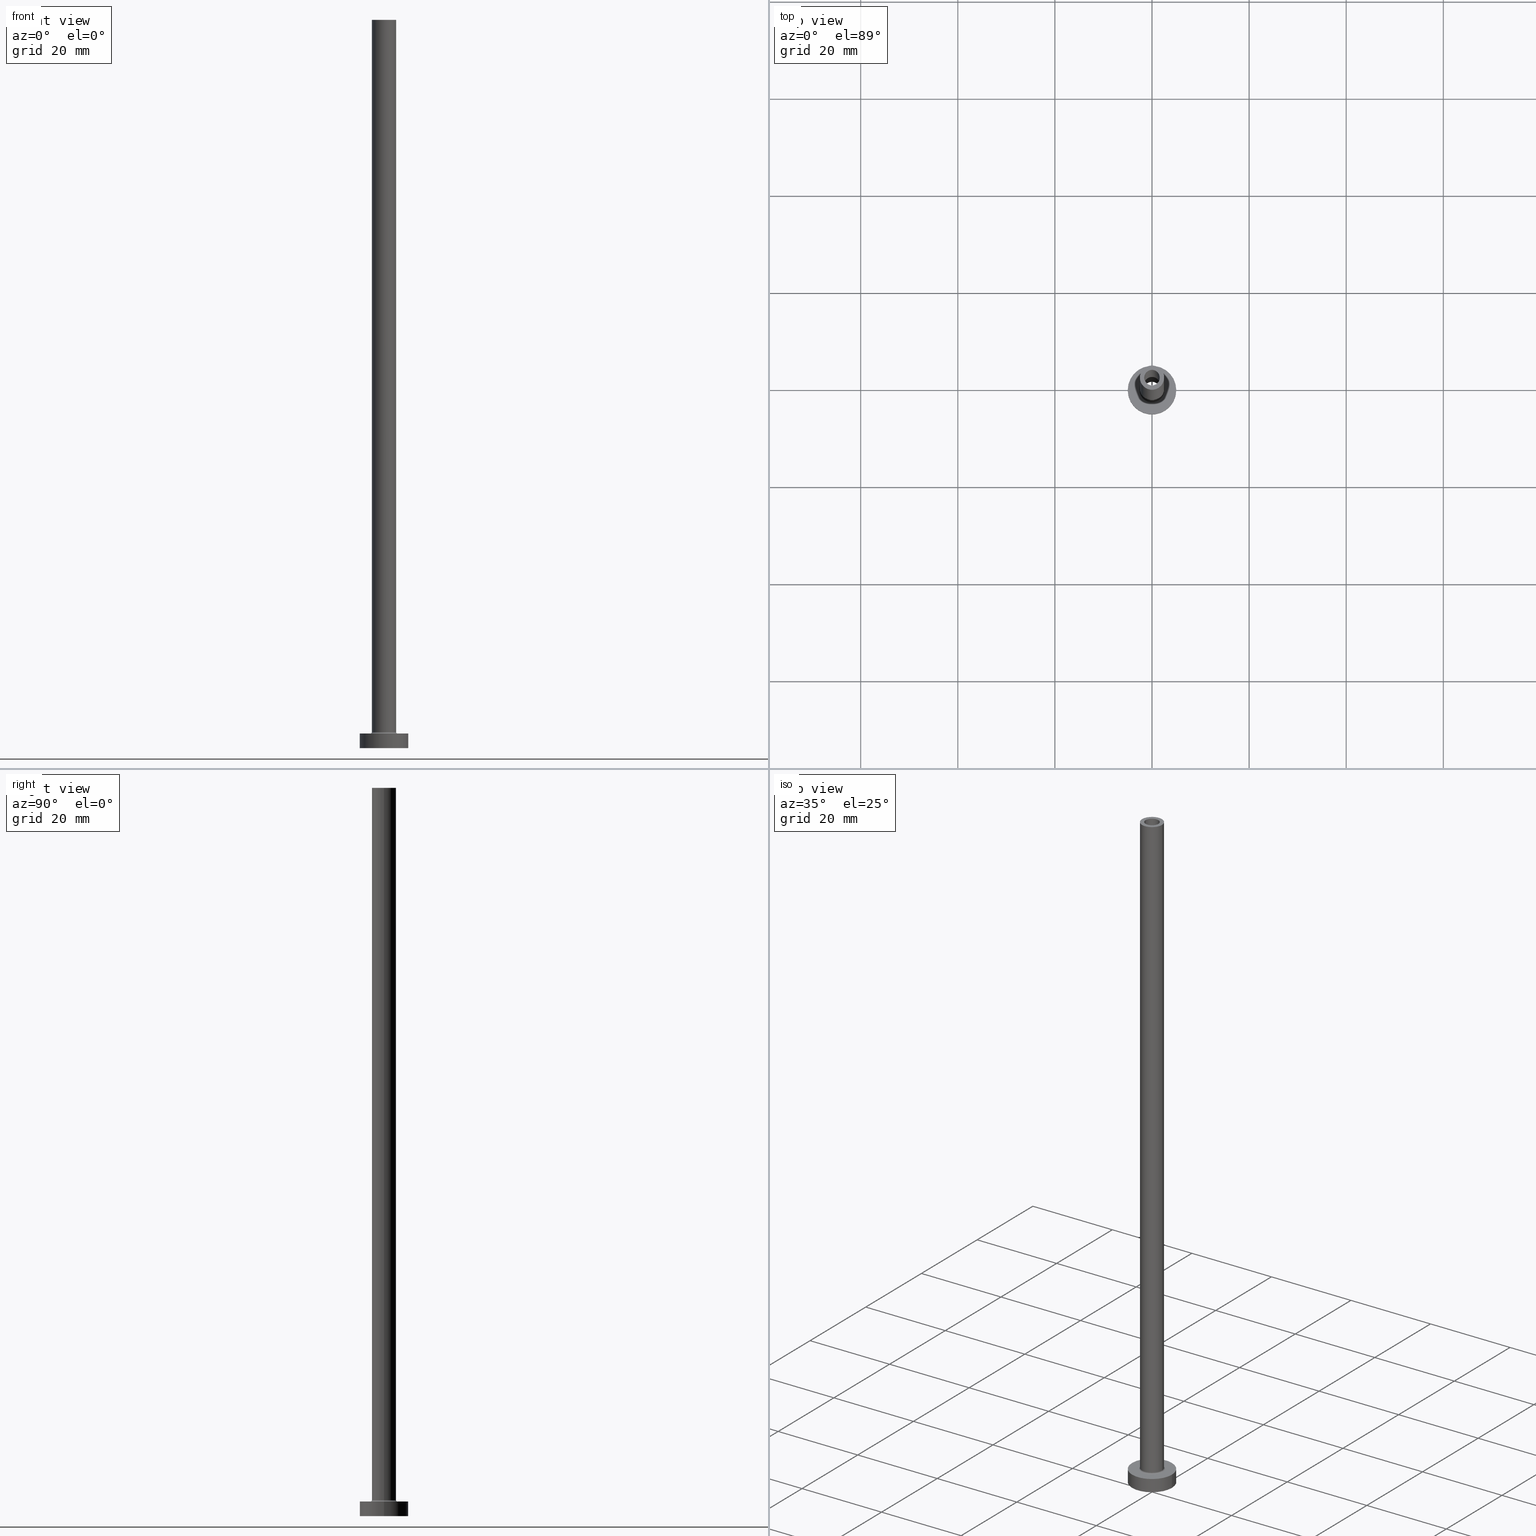
[diagram: canonical four-view strip — front | top / right | iso, engineering-drawing reading convention]
A machine part, canonical four-view strip (front | top / right | iso — engineering-drawing reading convention). The complete STEP part file that produces these views, byte-faithful:
ISO-10303-21;
HEADER;
FILE_DESCRIPTION (( 'STEP AP203' ),
    '1' );
FILE_NAME ('ae11.STEP',
    '2023-02-13T17:57:30',
    ( '' ),
    ( '' ),
    'SwSTEP 2.0',
    'SolidWorks 2019',
    '' );
FILE_SCHEMA (( 'CONFIG_CONTROL_DESIGN' ));
ENDSEC;

DATA;
#1 = EDGE_LOOP ( 'NONE', ( #250, #146, #103, #329 ) ) ;
#2 = DIRECTION ( 'NONE',  ( 0.000000000000000000, 0.000000000000000000, 1.000000000000000000 ) ) ;
#3 = VECTOR ( 'NONE', #459, 1000.000000000000000 ) ;
#4 = DIRECTION ( 'NONE',  ( 0.000000000000000000, 0.000000000000000000, 1.000000000000000000 ) ) ;
#5 = DIRECTION ( 'NONE',  ( 0.000000000000000000, 0.000000000000000000, 1.000000000000000000 ) ) ;
#6 = DIRECTION ( 'NONE',  ( 1.000000000000000000, 0.000000000000000000, -0.000000000000000000 ) ) ;
#7 = VERTEX_POINT ( 'NONE', #402 ) ;
#8 = ADVANCED_FACE ( 'NONE', ( #225 ), #370, .F. ) ;
#9 = CARTESIAN_POINT ( 'NONE',  ( 0.000000000000000000, 0.000000000000000000, 150.0000000000000000 ) ) ;
#10 = DIRECTION ( 'NONE',  ( 1.000000000000000000, 0.000000000000000000, 0.000000000000000000 ) ) ;
#11 = AXIS2_PLACEMENT_3D ( 'NONE', #151, #441, #405 ) ;
#12 = DIRECTION ( 'NONE',  ( 1.000000000000000000, 0.000000000000000000, 0.000000000000000000 ) ) ;
#13 = FACE_BOUND ( 'NONE', #406, .T. ) ;
#14 = DIRECTION ( 'NONE',  ( -1.000000000000000000, 0.000000000000000000, 0.000000000000000000 ) ) ;
#15 = ORIENTED_EDGE ( 'NONE', *, *, #382, .T. ) ;
#16 = PERSON_AND_ORGANIZATION_ROLE ( 'design_owner' ) ;
#17 = ORIENTED_EDGE ( 'NONE', *, *, #296, .F. ) ;
#18 = COORDINATED_UNIVERSAL_TIME_OFFSET ( 1, 0, .AHEAD. ) ;
#19 = VECTOR ( 'NONE', #176, 1000.000000000000000 ) ;
#20 = AXIS2_PLACEMENT_3D ( 'NONE', #246, #252, #436 ) ;
#21 = PERSON_AND_ORGANIZATION ( #450, #293 ) ;
#22 = CARTESIAN_POINT ( 'NONE',  ( 5.000000000000000000, 6.123233995736766282E-16, 3.000000000000000000 ) ) ;
#23 = DIRECTION ( 'NONE',  ( -0.000000000000000000, -0.000000000000000000, -1.000000000000000000 ) ) ;
#24 = CALENDAR_DATE ( 2023, 13, 2 ) ;
#25 = ADVANCED_FACE ( 'NONE', ( #191 ), #251, .F. ) ;
#26 = AXIS2_PLACEMENT_3D ( 'NONE', #179, #109, #393 ) ;
#27 = DIRECTION ( 'NONE',  ( 0.000000000000000000, 0.000000000000000000, -1.000000000000000000 ) ) ;
#28 = PERSON_AND_ORGANIZATION ( #450, #293 ) ;
#29 = DIRECTION ( 'NONE',  ( 0.000000000000000000, 0.000000000000000000, 1.000000000000000000 ) ) ;
#30 = DIRECTION ( 'NONE',  ( -1.000000000000000000, 0.000000000000000000, 0.000000000000000000 ) ) ;
#31 = PRODUCT_DEFINITION_FORMATION_WITH_SPECIFIED_SOURCE ( 'LIBOVOLN�', '', #299, .NOT_KNOWN. ) ;
#32 = AXIS2_PLACEMENT_3D ( 'NONE', #236, #65, #207 ) ;
#33 = CARTESIAN_POINT ( 'NONE',  ( 0.000000000000000000, 0.000000000000000000, 109.9497474683058442 ) ) ;
#34 = DATE_TIME_ROLE ( 'classification_date' ) ;
#35 = VERTEX_POINT ( 'NONE', #155 ) ;
#36 = DIRECTION ( 'NONE',  ( 1.000000000000000000, 0.000000000000000000, 0.000000000000000000 ) ) ;
#37 = VERTEX_POINT ( 'NONE', #337 ) ;
#38 = ORIENTED_EDGE ( 'NONE', *, *, #193, .T. ) ;
#39 = CARTESIAN_POINT ( 'NONE',  ( 0.000000000000000000, 0.000000000000000000, 105.0000000000000000 ) ) ;
#40 = CIRCLE ( 'NONE', #353, 5.000000000000000000 ) ;
#41 = VERTEX_POINT ( 'NONE', #22 ) ;
#42 = DIRECTION ( 'NONE',  ( 1.224646799147353207E-16, 1.000000000000000000, -0.000000000000000000 ) ) ;
#43 = CIRCLE ( 'NONE', #355, 2.799999999999999822 ) ;
#44 = CC_DESIGN_APPROVAL ( #56, ( #31 ) ) ;
#45 = EDGE_LOOP ( 'NONE', ( #289, #216 ) ) ;
#46 = EDGE_CURVE ( 'NONE', #351, #138, #123, .T. ) ;
#47 = LINE ( 'NONE', #364, #19 ) ;
#48 = DIRECTION ( 'NONE',  ( 0.000000000000000000, 0.000000000000000000, 1.000000000000000000 ) ) ;
#49 = CIRCLE ( 'NONE', #414, 0.2999999999999999334 ) ;
#50 = DIRECTION ( 'NONE',  ( 1.000000000000000000, 0.000000000000000000, 0.000000000000000000 ) ) ;
#51 = DIRECTION ( 'NONE',  ( 1.000000000000000000, 0.000000000000000000, 0.000000000000000000 ) ) ;
#52 = ORIENTED_EDGE ( 'NONE', *, *, #342, .T. ) ;
#53 = DATE_AND_TIME ( #408, #152 ) ;
#54 = DIRECTION ( 'NONE',  ( -1.000000000000000000, 0.000000000000000000, 0.000000000000000000 ) ) ;
#55 = COORDINATED_UNIVERSAL_TIME_OFFSET ( 1, 0, .AHEAD. ) ;
#56 = APPROVAL ( #197, 'NEUR�EN�' ) ;
#57 = UNCERTAINTY_MEASURE_WITH_UNIT (LENGTH_MEASURE( 1.000000000000000082E-05 ), #255, 'distance_accuracy_value', 'NONE');
#58 = DIRECTION ( 'NONE',  ( -0.000000000000000000, -0.000000000000000000, -1.000000000000000000 ) ) ;
#59 = CYLINDRICAL_SURFACE ( 'NONE', #454, 5.000000000000000000 ) ;
#60 = EDGE_CURVE ( 'NONE', #35, #149, #166, .T. ) ;
#61 = ORIENTED_EDGE ( 'NONE', *, *, #404, .F. ) ;
#62 = VECTOR ( 'NONE', #291, 1000.000000000000000 ) ;
#63 = DIRECTION ( 'NONE',  ( -0.000000000000000000, -0.000000000000000000, -1.000000000000000000 ) ) ;
#64 = SHAPE_DEFINITION_REPRESENTATION ( #115, #384 ) ;
#65 = DIRECTION ( 'NONE',  ( 0.000000000000000000, 0.000000000000000000, 1.000000000000000000 ) ) ;
#66 = EDGE_CURVE ( 'NONE', #395, #224, #88, .T. ) ;
#67 = CYLINDRICAL_SURFACE ( 'NONE', #70, 2.500000000000000000 ) ;
#68 = EDGE_LOOP ( 'NONE', ( #182, #80 ) ) ;
#69 = EDGE_CURVE ( 'NONE', #351, #157, #213, .T. ) ;
#70 = AXIS2_PLACEMENT_3D ( 'NONE', #202, #343, #30 ) ;
#71 = CARTESIAN_POINT ( 'NONE',  ( -1.750000000000000000, 0.000000000000000000, 0.000000000000000000 ) ) ;
#72 = DIRECTION ( 'NONE',  ( 1.000000000000000000, 0.000000000000000000, 0.000000000000000000 ) ) ;
#73 = ORIENTED_EDGE ( 'NONE', *, *, #105, .F. ) ;
#74 = CARTESIAN_POINT ( 'NONE',  ( 0.000000000000000000, 0.000000000000000000, 3.000000000000000000 ) ) ;
#75 = EDGE_CURVE ( 'NONE', #443, #275, #101, .T. ) ;
#76 = EDGE_LOOP ( 'NONE', ( #361, #175, #15, #444 ) ) ;
#77 = DIRECTION ( 'NONE',  ( 0.000000000000000000, 0.000000000000000000, 1.000000000000000000 ) ) ;
#78 = AXIS2_PLACEMENT_3D ( 'NONE', #84, #77, #50 ) ;
#79 = LOCAL_TIME ( 18, 57, 30.00000000000000000, #238 ) ;
#80 = ORIENTED_EDGE ( 'NONE', *, *, #274, .T. ) ;
#81 = CARTESIAN_POINT ( 'NONE',  ( 0.000000000000000000, 0.000000000000000000, 0.000000000000000000 ) ) ;
#82 = EDGE_LOOP ( 'NONE', ( #392, #243, #284, #279 ) ) ;
#83 = DIRECTION ( 'NONE',  ( -1.000000000000000000, 1.224646799147353207E-16, 0.000000000000000000 ) ) ;
#84 = CARTESIAN_POINT ( 'NONE',  ( 0.000000000000000000, 0.000000000000000000, 3.299999999999997158 ) ) ;
#85 = PRODUCT_DEFINITION ( 'NEZN�M�', '', #31, #229 ) ;
#86 = CARTESIAN_POINT ( 'NONE',  ( -5.000000000000000000, 0.000000000000000000, 3.000000000000000000 ) ) ;
#87 = LINE ( 'NONE', #220, #119 ) ;
#88 = LINE ( 'NONE', #339, #62 ) ;
#89 = AXIS2_PLACEMENT_3D ( 'NONE', #276, #425, #387 ) ;
#90 = VERTEX_POINT ( 'NONE', #134 ) ;
#91 = ORIENTED_EDGE ( 'NONE', *, *, #286, .T. ) ;
#92 = PRODUCT_RELATED_PRODUCT_CATEGORY ( 'detail', '', ( #299 ) ) ;
#93 = DIRECTION ( 'NONE',  ( 0.000000000000000000, 0.000000000000000000, -1.000000000000000000 ) ) ;
#94 = APPROVAL_PERSON_ORGANIZATION ( #97, #56, #263 ) ;
#95 = APPROVAL_ROLE ( '' ) ;
#96 = CARTESIAN_POINT ( 'NONE',  ( 0.000000000000000000, 0.000000000000000000, 3.000000000000000000 ) ) ;
#97 = PERSON_AND_ORGANIZATION ( #450, #293 ) ;
#98 = FACE_OUTER_BOUND ( 'NONE', #173, .T. ) ;
#99 = DATE_AND_TIME ( #381, #79 ) ;
#100 = DIRECTION ( 'NONE',  ( -0.000000000000000000, -0.000000000000000000, -1.000000000000000000 ) ) ;
#101 = CIRCLE ( 'NONE', #11, 2.500000000000000000 ) ;
#102 = FACE_OUTER_BOUND ( 'NONE', #321, .T. ) ;
#103 = ORIENTED_EDGE ( 'NONE', *, *, #375, .F. ) ;
#104 = FACE_BOUND ( 'NONE', #180, .T. ) ;
#105 = EDGE_CURVE ( 'NONE', #273, #41, #385, .T. ) ;
#106 = TOROIDAL_SURFACE ( 'NONE', #32, 2.799999999999999822, 0.2999999999999999889 ) ;
#107 = FACE_BOUND ( 'NONE', #256, .T. ) ;
#108 = ADVANCED_FACE ( 'NONE', ( #102 ), #59, .T. ) ;
#109 = DIRECTION ( 'NONE',  ( 0.000000000000000000, 0.000000000000000000, 1.000000000000000000 ) ) ;
#110 = DIRECTION ( 'NONE',  ( 0.000000000000000000, 0.000000000000000000, -1.000000000000000000 ) ) ;
#111 = ORIENTED_EDGE ( 'NONE', *, *, #303, .F. ) ;
#112 = CLOSED_SHELL ( 'NONE', ( #25, #440, #168, #158, #162, #108, #434, #257, #172, #233, #245, #222, #367, #8 ) ) ;
#113 = CARTESIAN_POINT ( 'NONE',  ( 0.000000000000000000, 0.000000000000000000, 3.000000000000000000 ) ) ;
#114 = DIRECTION ( 'NONE',  ( 0.000000000000000000, 0.000000000000000000, 1.000000000000000000 ) ) ;
#115 = PRODUCT_DEFINITION_SHAPE ( 'NONE', 'NONE',  #85 ) ;
#116 = ORIENTED_EDGE ( 'NONE', *, *, #360, .T. ) ;
#117 = DIRECTION ( 'NONE',  ( 0.000000000000000000, 0.000000000000000000, 1.000000000000000000 ) ) ;
#118 = CIRCLE ( 'NONE', #199, 1.600000000000000089 ) ;
#119 = VECTOR ( 'NONE', #242, 1000.000000000000000 ) ;
#120 = CC_DESIGN_PERSON_AND_ORGANIZATION_ASSIGNMENT ( #344, #460, ( #31 ) ) ;
#121 = ORIENTED_EDGE ( 'NONE', *, *, #416, .T. ) ;
#122 = APPLICATION_PROTOCOL_DEFINITION ( 'international standard', 'config_control_design', 1994, #418 ) ;
#123 = LINE ( 'NONE', #300, #206 ) ;
#124 = DIRECTION ( 'NONE',  ( 0.000000000000000000, 0.000000000000000000, -1.000000000000000000 ) ) ;
#125 = APPROVAL_STATUS ( 'not_yet_approved' ) ;
#126 = CARTESIAN_POINT ( 'NONE',  ( 0.000000000000000000, 0.000000000000000000, 0.000000000000000000 ) ) ;
#127 = DIRECTION ( 'NONE',  ( 1.000000000000000000, 0.000000000000000000, 0.000000000000000000 ) ) ;
#128 = PERSON_AND_ORGANIZATION_ROLE ( 'creator' ) ;
#129 = FACE_OUTER_BOUND ( 'NONE', #1, .T. ) ;
#130 = AXIS2_PLACEMENT_3D ( 'NONE', #96, #58, #51 ) ;
#131 = LOCAL_TIME ( 18, 57, 30.00000000000000000, #261 ) ;
#132 = CARTESIAN_POINT ( 'NONE',  ( 0.000000000000000000, 0.000000000000000000, 3.000000000000000000 ) ) ;
#133 = EDGE_CURVE ( 'NONE', #138, #212, #228, .T. ) ;
#134 = CARTESIAN_POINT ( 'NONE',  ( 5.000000000000000000, 6.123233995736766282E-16, 0.000000000000000000 ) ) ;
#135 = ORIENTED_EDGE ( 'NONE', *, *, #274, .F. ) ;
#136 = ORIENTED_EDGE ( 'NONE', *, *, #305, .T. ) ;
#137 = EDGE_CURVE ( 'NONE', #157, #212, #455, .T. ) ;
#138 = VERTEX_POINT ( 'NONE', #71 ) ;
#139 = TOROIDAL_SURFACE ( 'NONE', #234, 2.799999999999999822, 0.2999999999999999889 ) ;
#140 = DIRECTION ( 'NONE',  ( 1.000000000000000000, 0.000000000000000000, 0.000000000000000000 ) ) ;
#141 = ORIENTED_EDGE ( 'NONE', *, *, #303, .T. ) ;
#142 = FACE_OUTER_BOUND ( 'NONE', #68, .T. ) ;
#143 = EDGE_LOOP ( 'NONE', ( #153, #17 ) ) ;
#144 = CARTESIAN_POINT ( 'NONE',  ( 0.000000000000000000, 0.000000000000000000, 109.9497474683058442 ) ) ;
#145 = LINE ( 'NONE', #318, #232 ) ;
#146 = ORIENTED_EDGE ( 'NONE', *, *, #264, .T. ) ;
#147 = CIRCLE ( 'NONE', #186, 5.000000000000000000 ) ;
#148 = DIRECTION ( 'NONE',  ( -0.000000000000000000, -0.000000000000000000, -1.000000000000000000 ) ) ;
#149 = VERTEX_POINT ( 'NONE', #160 ) ;
#150 = DIRECTION ( 'NONE',  ( 0.000000000000000000, 0.000000000000000000, 1.000000000000000000 ) ) ;
#151 = CARTESIAN_POINT ( 'NONE',  ( 0.000000000000000000, 0.000000000000000000, 150.0000000000000000 ) ) ;
#152 = LOCAL_TIME ( 18, 57, 30.00000000000000000, #55 ) ;
#153 = ORIENTED_EDGE ( 'NONE', *, *, #453, .F. ) ;
#154 = CIRCLE ( 'NONE', #26, 5.000000000000000000 ) ;
#155 = CARTESIAN_POINT ( 'NONE',  ( -2.799999999999999822, 3.429011037612589276E-16, 2.999999999999998668 ) ) ;
#156 = CALENDAR_DATE ( 2023, 13, 2 ) ;
#157 = VERTEX_POINT ( 'NONE', #415 ) ;
#158 = ADVANCED_FACE ( 'NONE', ( #268 ), #411, .T. ) ;
#159 = AXIS2_PLACEMENT_3D ( 'NONE', #9, #315, #215 ) ;
#160 = CARTESIAN_POINT ( 'NONE',  ( 2.799999999999999822, 0.000000000000000000, 2.999999999999998668 ) ) ;
#161 = PERSON_AND_ORGANIZATION_ROLE ( 'classification_officer' ) ;
#162 = ADVANCED_FACE ( 'NONE', ( #345 ), #308, .T. ) ;
#163 = DIRECTION ( 'NONE',  ( -1.000000000000000000, 0.000000000000000000, 0.000000000000000000 ) ) ;
#164 = CC_DESIGN_DATE_AND_TIME_ASSIGNMENT ( #99, #34, ( #332 ) ) ;
#165 = APPROVAL_STATUS ( 'not_yet_approved' ) ;
#166 = CIRCLE ( 'NONE', #130, 2.799999999999999822 ) ;
#167 = DIRECTION ( 'NONE',  ( 0.000000000000000000, 0.000000000000000000, -1.000000000000000000 ) ) ;
#168 = ADVANCED_FACE ( 'NONE', ( #129 ), #106, .F. ) ;
#169 = DATE_AND_TIME ( #417, #334 ) ;
#170 = DIRECTION ( 'NONE',  ( 1.000000000000000000, 0.000000000000000000, -0.000000000000000000 ) ) ;
#171 = APPROVAL_DATE_TIME ( #169, #183 ) ;
#172 = ADVANCED_FACE ( 'NONE', ( #301 ), #67, .T. ) ;
#173 = EDGE_LOOP ( 'NONE', ( #420, #324, #292, #407 ) ) ;
#174 = CARTESIAN_POINT ( 'NONE',  ( 0.000000000000000000, 0.000000000000000000, 3.299999999999997158 ) ) ;
#175 = ORIENTED_EDGE ( 'NONE', *, *, #404, .T. ) ;
#176 = DIRECTION ( 'NONE',  ( 0.000000000000000000, 0.000000000000000000, -1.000000000000000000 ) ) ;
#177 = AXIS2_PLACEMENT_3D ( 'NONE', #340, #198, #304 ) ;
#178 = ORIENTED_EDGE ( 'NONE', *, *, #372, .F. ) ;
#179 = CARTESIAN_POINT ( 'NONE',  ( 0.000000000000000000, 0.000000000000000000, 0.000000000000000000 ) ) ;
#180 = EDGE_LOOP ( 'NONE', ( #376, #61 ) ) ;
#181 = DIRECTION ( 'NONE',  ( 1.000000000000000000, 0.000000000000000000, 0.000000000000000000 ) ) ;
#182 = ORIENTED_EDGE ( 'NONE', *, *, #105, .T. ) ;
#183 = APPROVAL ( #165, 'NEUR�EN�' ) ;
#184 = CARTESIAN_POINT ( 'NONE',  ( 0.000000000000000000, 0.000000000000000000, 105.0000000000000000 ) ) ;
#185 = DIRECTION ( 'NONE',  ( 1.000000000000000000, 0.000000000000000000, 0.000000000000000000 ) ) ;
#186 = AXIS2_PLACEMENT_3D ( 'NONE', #74, #48, #10 ) ;
#187 = CARTESIAN_POINT ( 'NONE',  ( 0.000000000000000000, 0.000000000000000000, 150.0000000000000000 ) ) ;
#188 = CC_DESIGN_DATE_AND_TIME_ASSIGNMENT ( #190, #331, ( #85 ) ) ;
#189 = EDGE_LOOP ( 'NONE', ( #141, #430 ) ) ;
#190 = DATE_AND_TIME ( #24, #131 ) ;
#191 = FACE_OUTER_BOUND ( 'NONE', #82, .T. ) ;
#192 = AXIS2_PLACEMENT_3D ( 'NONE', #379, #29, #200 ) ;
#193 = EDGE_CURVE ( 'NONE', #212, #138, #240, .T. ) ;
#194 = DIRECTION ( 'NONE',  ( 0.000000000000000000, 0.000000000000000000, -1.000000000000000000 ) ) ;
#195 = EDGE_CURVE ( 'NONE', #41, #90, #231, .T. ) ;
#196 = CARTESIAN_POINT ( 'NONE',  ( 0.000000000000000000, 0.000000000000000000, 150.0000000000000000 ) ) ;
#197 = APPROVAL_STATUS ( 'not_yet_approved' ) ;
#198 = DIRECTION ( 'NONE',  ( -0.000000000000000000, -0.000000000000000000, -1.000000000000000000 ) ) ;
#199 = AXIS2_PLACEMENT_3D ( 'NONE', #241, #363, #185 ) ;
#200 = DIRECTION ( 'NONE',  ( 1.000000000000000000, 0.000000000000000000, 0.000000000000000000 ) ) ;
#201 = CC_DESIGN_PERSON_AND_ORGANIZATION_ASSIGNMENT ( #28, #128, ( #31 ) ) ;
#202 = CARTESIAN_POINT ( 'NONE',  ( 0.000000000000000000, 0.000000000000000000, 150.0000000000000000 ) ) ;
#203 = CARTESIAN_POINT ( 'NONE',  ( 1.750000000000000000, 2.143131898507868297E-16, 0.000000000000000000 ) ) ;
#204 = APPROVAL_PERSON_ORGANIZATION ( #266, #183, #412 ) ;
#205 = EDGE_LOOP ( 'NONE', ( #260, #458 ) ) ;
#206 = VECTOR ( 'NONE', #124, 1000.000000000000000 ) ;
#207 = DIRECTION ( 'NONE',  ( 1.000000000000000000, 0.000000000000000000, 0.000000000000000000 ) ) ;
#208 = APPROVAL_DATE_TIME ( #346, #56 ) ;
#209 = CARTESIAN_POINT ( 'NONE',  ( -2.500000000000000000, 0.000000000000000000, 3.299999999999997158 ) ) ;
#210 = CARTESIAN_POINT ( 'NONE',  ( 2.500000000000000000, 3.061616997868383141E-16, 3.299999999999997158 ) ) ;
#211 = CARTESIAN_POINT ( 'NONE',  ( -2.799999999999999822, 3.429011037612588783E-16, 3.299999999999997158 ) ) ;
#212 = VERTEX_POINT ( 'NONE', #203 ) ;
#213 = CIRCLE ( 'NONE', #396, 1.750000000000000000 ) ;
#214 = CIRCLE ( 'NONE', #456, 1.600000000000000089 ) ;
#215 = DIRECTION ( 'NONE',  ( 1.000000000000000000, 0.000000000000000000, 0.000000000000000000 ) ) ;
#216 = ORIENTED_EDGE ( 'NONE', *, *, #60, .T. ) ;
#217 = LINE ( 'NONE', #325, #3 ) ;
#218 = CARTESIAN_POINT ( 'NONE',  ( 0.000000000000000000, 0.000000000000000000, 3.000000000000000000 ) ) ;
#219 = FACE_OUTER_BOUND ( 'NONE', #205, .T. ) ;
#220 = CARTESIAN_POINT ( 'NONE',  ( 2.500000000000000000, 3.061616997868383141E-16, 150.0000000000000000 ) ) ;
#221 = AXIS2_PLACEMENT_3D ( 'NONE', #184, #358, #36 ) ;
#222 = ADVANCED_FACE ( 'NONE', ( #98 ), #262, .F. ) ;
#223 =( NAMED_UNIT ( * ) PLANE_ANGLE_UNIT ( ) SI_UNIT ( $, .RADIAN. ) );
#224 = VERTEX_POINT ( 'NONE', #378 ) ;
#225 = FACE_OUTER_BOUND ( 'NONE', #76, .T. ) ;
#226 = CC_DESIGN_APPROVAL ( #369, ( #85 ) ) ;
#227 = ORIENTED_EDGE ( 'NONE', *, *, #193, .F. ) ;
#228 = CIRCLE ( 'NONE', #177, 1.750000000000000000 ) ;
#229 = DESIGN_CONTEXT ( 'detailed design', #438, 'design' ) ;
#230 = MANIFOLD_SOLID_BREP ( 'Odebrat vysunut�m4', #112 ) ;
#231 = LINE ( 'NONE', #419, #317 ) ;
#232 = VECTOR ( 'NONE', #356, 1000.000000000000000 ) ;
#233 = ADVANCED_FACE ( 'NONE', ( #104, #282 ), #401, .T. ) ;
#234 = AXIS2_PLACEMENT_3D ( 'NONE', #323, #114, #72 ) ;
#235 = APPROVAL_PERSON_ORGANIZATION ( #21, #369, #95 ) ;
#236 = CARTESIAN_POINT ( 'NONE',  ( 0.000000000000000000, 0.000000000000000000, 3.299999999999997158 ) ) ;
#237 = DIRECTION ( 'NONE',  ( -0.000000000000000000, -0.000000000000000000, -1.000000000000000000 ) ) ;
#238 = COORDINATED_UNIVERSAL_TIME_OFFSET ( 1, 0, .AHEAD. ) ;
#239 = ORIENTED_EDGE ( 'NONE', *, *, #264, .F. ) ;
#240 = CIRCLE ( 'NONE', #365, 1.750000000000000000 ) ;
#241 = CARTESIAN_POINT ( 'NONE',  ( 0.000000000000000000, 0.000000000000000000, 105.0000000000000000 ) ) ;
#242 = DIRECTION ( 'NONE',  ( -0.000000000000000000, -0.000000000000000000, -1.000000000000000000 ) ) ;
#243 = ORIENTED_EDGE ( 'NONE', *, *, #66, .T. ) ;
#244 = DIRECTION ( 'NONE',  ( 0.000000000000000000, -1.000000000000000000, 0.000000000000000000 ) ) ;
#245 = ADVANCED_FACE ( 'NONE', ( #290 ), #139, .F. ) ;
#246 = CARTESIAN_POINT ( 'NONE',  ( 0.000000000000000000, 0.000000000000000000, 150.0000000000000000 ) ) ;
#247 = AXIS2_PLACEMENT_3D ( 'NONE', #113, #429, #6 ) ;
#248 = DIRECTION ( 'NONE',  ( 0.000000000000000000, 0.000000000000000000, 1.000000000000000000 ) ) ;
#249 = DIRECTION ( 'NONE',  ( 1.000000000000000000, 0.000000000000000000, 0.000000000000000000 ) ) ;
#250 = ORIENTED_EDGE ( 'NONE', *, *, #342, .F. ) ;
#251 = CYLINDRICAL_SURFACE ( 'NONE', #435, 1.600000000000000089 ) ;
#252 = DIRECTION ( 'NONE',  ( 0.000000000000000000, 0.000000000000000000, 1.000000000000000000 ) ) ;
#253 = AXIS2_PLACEMENT_3D ( 'NONE', #39, #4, #359 ) ;
#254 = DIRECTION ( 'NONE',  ( 1.000000000000000000, 0.000000000000000000, 0.000000000000000000 ) ) ;
#255 =( LENGTH_UNIT ( ) NAMED_UNIT ( * ) SI_UNIT ( .MILLI., .METRE. ) );
#256 = EDGE_LOOP ( 'NONE', ( #347, #227 ) ) ;
#257 = ADVANCED_FACE ( 'NONE', ( #107, #349 ), #431, .F. ) ;
#258 = APPLICATION_PROTOCOL_DEFINITION ( 'international standard', 'config_control_design', 1994, #438 ) ;
#259 =( NAMED_UNIT ( * ) SI_UNIT ( $, .STERADIAN. ) SOLID_ANGLE_UNIT ( ) );
#260 = ORIENTED_EDGE ( 'NONE', *, *, #69, .F. ) ;
#261 = COORDINATED_UNIVERSAL_TIME_OFFSET ( 1, 0, .AHEAD. ) ;
#262 = CYLINDRICAL_SURFACE ( 'NONE', #288, 1.750000000000000000 ) ;
#263 = APPROVAL_ROLE ( '' ) ;
#264 = EDGE_CURVE ( 'NONE', #316, #35, #327, .T. ) ;
#265 = LOCAL_TIME ( 18, 57, 30.00000000000000000, #18 ) ;
#266 = PERSON_AND_ORGANIZATION ( #450, #293 ) ;
#267 = CIRCLE ( 'NONE', #78, 2.500000000000000000 ) ;
#268 = FACE_OUTER_BOUND ( 'NONE', #362, .T. ) ;
#269 = COORDINATED_UNIVERSAL_TIME_OFFSET ( 1, 0, .AHEAD. ) ;
#270 = ORIENTED_EDGE ( 'NONE', *, *, #399, .T. ) ;
#271 = DIRECTION ( 'NONE',  ( -1.000000000000000000, 0.000000000000000000, 0.000000000000000000 ) ) ;
#272 = PERSON_AND_ORGANIZATION ( #450, #293 ) ;
#273 = VERTEX_POINT ( 'NONE', #86 ) ;
#274 = EDGE_CURVE ( 'NONE', #41, #273, #147, .T. ) ;
#275 = VERTEX_POINT ( 'NONE', #389 ) ;
#276 = CARTESIAN_POINT ( 'NONE',  ( 0.000000000000000000, 0.000000000000000000, 105.0000000000000000 ) ) ;
#277 = AXIS2_PLACEMENT_3D ( 'NONE', #285, #248, #398 ) ;
#278 = VERTEX_POINT ( 'NONE', #348 ) ;
#279 = ORIENTED_EDGE ( 'NONE', *, *, #382, .F. ) ;
#280 = PLANE ( 'NONE',  #247 ) ;
#281 = CC_DESIGN_PERSON_AND_ORGANIZATION_ASSIGNMENT ( #374, #445, ( #85 ) ) ;
#282 = FACE_OUTER_BOUND ( 'NONE', #189, .T. ) ;
#283 = DIRECTION ( 'NONE',  ( 0.000000000000000000, 0.000000000000000000, 1.000000000000000000 ) ) ;
#284 = ORIENTED_EDGE ( 'NONE', *, *, #360, .F. ) ;
#285 = CARTESIAN_POINT ( 'NONE',  ( 0.000000000000000000, 0.000000000000000000, 0.000000000000000000 ) ) ;
#286 = EDGE_CURVE ( 'NONE', #383, #149, #49, .T. ) ;
#287 =( GEOMETRIC_REPRESENTATION_CONTEXT ( 3 ) GLOBAL_UNCERTAINTY_ASSIGNED_CONTEXT ( ( #57 ) ) GLOBAL_UNIT_ASSIGNED_CONTEXT ( ( #255, #223, #259 ) ) REPRESENTATION_CONTEXT ( 'NONE', 'WORKASPACE' ) );
#288 = AXIS2_PLACEMENT_3D ( 'NONE', #33, #167, #271 ) ;
#289 = ORIENTED_EDGE ( 'NONE', *, *, #375, .T. ) ;
#290 = FACE_OUTER_BOUND ( 'NONE', #388, .T. ) ;
#291 = DIRECTION ( 'NONE',  ( 0.000000000000000000, 0.000000000000000000, -1.000000000000000000 ) ) ;
#292 = ORIENTED_EDGE ( 'NONE', *, *, #46, .T. ) ;
#293 = ORGANIZATION ( 'NEUR�EN�', 'NEUR�EN�', '' ) ;
#294 = VECTOR ( 'NONE', #27, 1000.000000000000000 ) ;
#295 = AXIS2_PLACEMENT_3D ( 'NONE', #144, #110, #14 ) ;
#296 = EDGE_CURVE ( 'NONE', #90, #7, #154, .T. ) ;
#297 = ORIENTED_EDGE ( 'NONE', *, *, #399, .F. ) ;
#298 = DIRECTION ( 'NONE',  ( 0.000000000000000000, 0.000000000000000000, 1.000000000000000000 ) ) ;
#299 = PRODUCT ( 'ae11', 'ae11', '', ( #447 ) ) ;
#300 = CARTESIAN_POINT ( 'NONE',  ( -1.750000000000000000, 0.000000000000000000, 109.9497474683058442 ) ) ;
#301 = FACE_OUTER_BOUND ( 'NONE', #386, .T. ) ;
#302 = CIRCLE ( 'NONE', #159, 2.500000000000000000 ) ;
#303 = EDGE_CURVE ( 'NONE', #275, #443, #302, .T. ) ;
#304 = DIRECTION ( 'NONE',  ( 1.000000000000000000, 0.000000000000000000, 0.000000000000000000 ) ) ;
#305 = EDGE_CURVE ( 'NONE', #224, #37, #426, .T. ) ;
#306 = DIRECTION ( 'NONE',  ( -0.000000000000000000, -0.000000000000000000, -1.000000000000000000 ) ) ;
#307 = AXIS2_PLACEMENT_3D ( 'NONE', #421, #63, #380 ) ;
#308 = CYLINDRICAL_SURFACE ( 'NONE', #333, 5.000000000000000000 ) ;
#309 = EDGE_CURVE ( 'NONE', #275, #316, #217, .T. ) ;
#310 = SECURITY_CLASSIFICATION_LEVEL ( 'unclassified' ) ;
#311 = EDGE_LOOP ( 'NONE', ( #368, #439, #38, #424 ) ) ;
#312 = DIRECTION ( 'NONE',  ( 0.000000000000000000, 0.000000000000000000, -1.000000000000000000 ) ) ;
#313 = EDGE_CURVE ( 'NONE', #157, #351, #319, .T. ) ;
#314 = ORIENTED_EDGE ( 'NONE', *, *, #296, .T. ) ;
#315 = DIRECTION ( 'NONE',  ( 0.000000000000000000, 0.000000000000000000, 1.000000000000000000 ) ) ;
#316 = VERTEX_POINT ( 'NONE', #209 ) ;
#317 = VECTOR ( 'NONE', #237, 1000.000000000000000 ) ;
#318 = CARTESIAN_POINT ( 'NONE',  ( -5.000000000000000000, 0.000000000000000000, 3.000000000000000000 ) ) ;
#319 = CIRCLE ( 'NONE', #89, 1.750000000000000000 ) ;
#320 = CARTESIAN_POINT ( 'NONE',  ( 2.799999999999999822, 0.000000000000000000, 3.299999999999997158 ) ) ;
#321 = EDGE_LOOP ( 'NONE', ( #428, #73, #121, #432 ) ) ;
#322 = FACE_BOUND ( 'NONE', #45, .T. ) ;
#323 = CARTESIAN_POINT ( 'NONE',  ( 0.000000000000000000, 0.000000000000000000, 3.299999999999997158 ) ) ;
#324 = ORIENTED_EDGE ( 'NONE', *, *, #313, .T. ) ;
#325 = CARTESIAN_POINT ( 'NONE',  ( -2.500000000000000000, 0.000000000000000000, 150.0000000000000000 ) ) ;
#326 = CC_DESIGN_PERSON_AND_ORGANIZATION_ASSIGNMENT ( #272, #161, ( #332 ) ) ;
#327 = CIRCLE ( 'NONE', #409, 0.2999999999999999334 ) ;
#328 = CYLINDRICAL_SURFACE ( 'NONE', #295, 1.750000000000000000 ) ;
#329 = ORIENTED_EDGE ( 'NONE', *, *, #286, .F. ) ;
#330 = ORIENTED_EDGE ( 'NONE', *, *, #195, .T. ) ;
#331 = DATE_TIME_ROLE ( 'creation_date' ) ;
#332 = SECURITY_CLASSIFICATION ( '', '', #310 ) ;
#333 = AXIS2_PLACEMENT_3D ( 'NONE', #449, #23, #457 ) ;
#334 = LOCAL_TIME ( 18, 57, 30.00000000000000000, #269 ) ;
#335 = DIRECTION ( 'NONE',  ( -1.000000000000000000, 0.000000000000000000, 0.000000000000000000 ) ) ;
#336 = CARTESIAN_POINT ( 'NONE',  ( 0.000000000000000000, 0.000000000000000000, 0.000000000000000000 ) ) ;
#337 = CARTESIAN_POINT ( 'NONE',  ( -1.600000000000000089, 0.000000000000000000, 105.0000000000000000 ) ) ;
#338 = PERSON_AND_ORGANIZATION ( #450, #293 ) ;
#339 = CARTESIAN_POINT ( 'NONE',  ( 1.600000000000000089, 1.959434878635764737E-16, 150.0000000000000000 ) ) ;
#340 = CARTESIAN_POINT ( 'NONE',  ( 0.000000000000000000, 0.000000000000000000, 0.000000000000000000 ) ) ;
#341 = CIRCLE ( 'NONE', #403, 2.500000000000000000 ) ;
#342 = EDGE_CURVE ( 'NONE', #316, #383, #341, .T. ) ;
#343 = DIRECTION ( 'NONE',  ( -0.000000000000000000, -0.000000000000000000, -1.000000000000000000 ) ) ;
#344 = PERSON_AND_ORGANIZATION ( #450, #293 ) ;
#345 = FACE_OUTER_BOUND ( 'NONE', #373, .T. ) ;
#346 = DATE_AND_TIME ( #156, #265 ) ;
#347 = ORIENTED_EDGE ( 'NONE', *, *, #133, .F. ) ;
#348 = CARTESIAN_POINT ( 'NONE',  ( -1.600000000000000089, 0.000000000000000000, 150.0000000000000000 ) ) ;
#349 = FACE_OUTER_BOUND ( 'NONE', #143, .T. ) ;
#350 = CC_DESIGN_PERSON_AND_ORGANIZATION_ASSIGNMENT ( #338, #16, ( #299 ) ) ;
#351 = VERTEX_POINT ( 'NONE', #427 ) ;
#352 = PLANE ( 'NONE',  #253 ) ;
#353 = AXIS2_PLACEMENT_3D ( 'NONE', #81, #150, #249 ) ;
#354 = ORIENTED_EDGE ( 'NONE', *, *, #75, .F. ) ;
#355 = AXIS2_PLACEMENT_3D ( 'NONE', #218, #148, #12 ) ;
#356 = DIRECTION ( 'NONE',  ( -0.000000000000000000, -0.000000000000000000, -1.000000000000000000 ) ) ;
#357 = CIRCLE ( 'NONE', #20, 1.600000000000000089 ) ;
#358 = DIRECTION ( 'NONE',  ( 0.000000000000000000, 0.000000000000000000, 1.000000000000000000 ) ) ;
#359 = DIRECTION ( 'NONE',  ( 1.000000000000000000, 0.000000000000000000, -0.000000000000000000 ) ) ;
#360 = EDGE_CURVE ( 'NONE', #37, #224, #118, .T. ) ;
#361 = ORIENTED_EDGE ( 'NONE', *, *, #66, .F. ) ;
#362 = EDGE_LOOP ( 'NONE', ( #354, #461, #270, #446 ) ) ;
#363 = DIRECTION ( 'NONE',  ( 0.000000000000000000, 0.000000000000000000, 1.000000000000000000 ) ) ;
#364 = CARTESIAN_POINT ( 'NONE',  ( -1.600000000000000089, 0.000000000000000000, 150.0000000000000000 ) ) ;
#365 = AXIS2_PLACEMENT_3D ( 'NONE', #126, #306, #127 ) ;
#366 = CARTESIAN_POINT ( 'NONE',  ( 0.000000000000000000, 0.000000000000000000, 105.0000000000000000 ) ) ;
#367 = ADVANCED_FACE ( 'NONE', ( #13, #219 ), #352, .F. ) ;
#368 = ORIENTED_EDGE ( 'NONE', *, *, #69, .T. ) ;
#369 = APPROVAL ( #125, 'NEUR�EN�' ) ;
#370 = CYLINDRICAL_SURFACE ( 'NONE', #448, 1.600000000000000089 ) ;
#371 = CC_DESIGN_SECURITY_CLASSIFICATION ( #332, ( #31 ) ) ;
#372 = EDGE_CURVE ( 'NONE', #443, #383, #87, .T. ) ;
#373 = EDGE_LOOP ( 'NONE', ( #135, #330, #314, #400 ) ) ;
#374 = PERSON_AND_ORGANIZATION ( #450, #293 ) ;
#375 = EDGE_CURVE ( 'NONE', #149, #35, #43, .T. ) ;
#376 = ORIENTED_EDGE ( 'NONE', *, *, #423, .F. ) ;
#377 = DIRECTION ( 'NONE',  ( 1.000000000000000000, 0.000000000000000000, 0.000000000000000000 ) ) ;
#378 = CARTESIAN_POINT ( 'NONE',  ( 1.600000000000000089, 1.959434878635764737E-16, 105.0000000000000000 ) ) ;
#379 = CARTESIAN_POINT ( 'NONE',  ( 0.000000000000000000, 0.000000000000000000, 3.000000000000000000 ) ) ;
#380 = DIRECTION ( 'NONE',  ( -1.000000000000000000, 0.000000000000000000, 0.000000000000000000 ) ) ;
#381 = CALENDAR_DATE ( 2023, 13, 2 ) ;
#382 = EDGE_CURVE ( 'NONE', #278, #37, #47, .T. ) ;
#383 = VERTEX_POINT ( 'NONE', #210 ) ;
#384 = ADVANCED_BREP_SHAPE_REPRESENTATION ( 'ae11', ( #230, #394 ), #287 ) ;
#385 = CIRCLE ( 'NONE', #192, 5.000000000000000000 ) ;
#386 = EDGE_LOOP ( 'NONE', ( #178, #111, #390, #52 ) ) ;
#387 = DIRECTION ( 'NONE',  ( 1.000000000000000000, 0.000000000000000000, 0.000000000000000000 ) ) ;
#388 = EDGE_LOOP ( 'NONE', ( #239, #297, #91, #422 ) ) ;
#389 = CARTESIAN_POINT ( 'NONE',  ( -2.500000000000000000, 0.000000000000000000, 150.0000000000000000 ) ) ;
#390 = ORIENTED_EDGE ( 'NONE', *, *, #309, .T. ) ;
#391 = CARTESIAN_POINT ( 'NONE',  ( 1.600000000000000089, 1.959434878635764737E-16, 150.0000000000000000 ) ) ;
#392 = ORIENTED_EDGE ( 'NONE', *, *, #423, .T. ) ;
#393 = DIRECTION ( 'NONE',  ( 1.000000000000000000, 0.000000000000000000, 0.000000000000000000 ) ) ;
#394 = AXIS2_PLACEMENT_3D ( 'NONE', #336, #298, #377 ) ;
#395 = VERTEX_POINT ( 'NONE', #391 ) ;
#396 = AXIS2_PLACEMENT_3D ( 'NONE', #366, #117, #254 ) ;
#397 = FACE_OUTER_BOUND ( 'NONE', #311, .T. ) ;
#398 = DIRECTION ( 'NONE',  ( 1.000000000000000000, 0.000000000000000000, -0.000000000000000000 ) ) ;
#399 = EDGE_CURVE ( 'NONE', #383, #316, #267, .T. ) ;
#400 = ORIENTED_EDGE ( 'NONE', *, *, #416, .F. ) ;
#401 = PLANE ( 'NONE',  #442 ) ;
#402 = CARTESIAN_POINT ( 'NONE',  ( -5.000000000000000000, 0.000000000000000000, 0.000000000000000000 ) ) ;
#403 = AXIS2_PLACEMENT_3D ( 'NONE', #174, #2, #140 ) ;
#404 = EDGE_CURVE ( 'NONE', #395, #278, #214, .T. ) ;
#405 = DIRECTION ( 'NONE',  ( 1.000000000000000000, 0.000000000000000000, 0.000000000000000000 ) ) ;
#406 = EDGE_LOOP ( 'NONE', ( #116, #136 ) ) ;
#407 = ORIENTED_EDGE ( 'NONE', *, *, #133, .T. ) ;
#408 = CALENDAR_DATE ( 2023, 13, 2 ) ;
#409 = AXIS2_PLACEMENT_3D ( 'NONE', #211, #42, #83 ) ;
#410 = CARTESIAN_POINT ( 'NONE',  ( 0.000000000000000000, 0.000000000000000000, 150.0000000000000000 ) ) ;
#411 = CYLINDRICAL_SURFACE ( 'NONE', #307, 2.500000000000000000 ) ;
#412 = APPROVAL_ROLE ( '' ) ;
#413 = CC_DESIGN_APPROVAL ( #183, ( #332 ) ) ;
#414 = AXIS2_PLACEMENT_3D ( 'NONE', #320, #244, #312 ) ;
#415 = CARTESIAN_POINT ( 'NONE',  ( 1.750000000000000000, 2.143131898507868297E-16, 105.0000000000000000 ) ) ;
#416 = EDGE_CURVE ( 'NONE', #273, #7, #145, .T. ) ;
#417 = CALENDAR_DATE ( 2023, 13, 2 ) ;
#418 = APPLICATION_CONTEXT ( 'configuration controlled 3d designs of mechanical parts and assemblies' ) ;
#419 = CARTESIAN_POINT ( 'NONE',  ( 5.000000000000000000, 6.123233995736766282E-16, 3.000000000000000000 ) ) ;
#420 = ORIENTED_EDGE ( 'NONE', *, *, #137, .F. ) ;
#421 = CARTESIAN_POINT ( 'NONE',  ( 0.000000000000000000, 0.000000000000000000, 150.0000000000000000 ) ) ;
#422 = ORIENTED_EDGE ( 'NONE', *, *, #60, .F. ) ;
#423 = EDGE_CURVE ( 'NONE', #278, #395, #357, .T. ) ;
#424 = ORIENTED_EDGE ( 'NONE', *, *, #46, .F. ) ;
#425 = DIRECTION ( 'NONE',  ( 0.000000000000000000, 0.000000000000000000, 1.000000000000000000 ) ) ;
#426 = CIRCLE ( 'NONE', #221, 1.600000000000000089 ) ;
#427 = CARTESIAN_POINT ( 'NONE',  ( -1.750000000000000000, 0.000000000000000000, 105.0000000000000000 ) ) ;
#428 = ORIENTED_EDGE ( 'NONE', *, *, #195, .F. ) ;
#429 = DIRECTION ( 'NONE',  ( 0.000000000000000000, 0.000000000000000000, 1.000000000000000000 ) ) ;
#430 = ORIENTED_EDGE ( 'NONE', *, *, #75, .T. ) ;
#431 = PLANE ( 'NONE',  #277 ) ;
#432 = ORIENTED_EDGE ( 'NONE', *, *, #453, .T. ) ;
#433 = CARTESIAN_POINT ( 'NONE',  ( 2.500000000000000000, 3.061616997868383141E-16, 150.0000000000000000 ) ) ;
#434 = ADVANCED_FACE ( 'NONE', ( #322, #142 ), #280, .T. ) ;
#435 = AXIS2_PLACEMENT_3D ( 'NONE', #196, #194, #335 ) ;
#436 = DIRECTION ( 'NONE',  ( 1.000000000000000000, 0.000000000000000000, 0.000000000000000000 ) ) ;
#437 = CARTESIAN_POINT ( 'NONE',  ( 0.000000000000000000, 0.000000000000000000, 150.0000000000000000 ) ) ;
#438 = APPLICATION_CONTEXT ( 'configuration controlled 3d designs of mechanical parts and assemblies' ) ;
#439 = ORIENTED_EDGE ( 'NONE', *, *, #137, .T. ) ;
#440 = ADVANCED_FACE ( 'NONE', ( #397 ), #328, .F. ) ;
#441 = DIRECTION ( 'NONE',  ( 0.000000000000000000, 0.000000000000000000, 1.000000000000000000 ) ) ;
#442 = AXIS2_PLACEMENT_3D ( 'NONE', #437, #5, #170 ) ;
#443 = VERTEX_POINT ( 'NONE', #433 ) ;
#444 = ORIENTED_EDGE ( 'NONE', *, *, #305, .F. ) ;
#445 = PERSON_AND_ORGANIZATION_ROLE ( 'creator' ) ;
#446 = ORIENTED_EDGE ( 'NONE', *, *, #309, .F. ) ;
#447 = MECHANICAL_CONTEXT ( 'NONE', #418, 'mechanical' ) ;
#448 = AXIS2_PLACEMENT_3D ( 'NONE', #410, #93, #54 ) ;
#449 = CARTESIAN_POINT ( 'NONE',  ( 0.000000000000000000, 0.000000000000000000, 3.000000000000000000 ) ) ;
#450 = PERSON ( 'NEUR�EN�', 'NEUR�EN�', 'NEUR�EN�', ('NEUR�EN�'), ('NEUR�EN�'), ('NEUR�EN�') ) ;
#451 = APPROVAL_DATE_TIME ( #53, #369 ) ;
#452 = CARTESIAN_POINT ( 'NONE',  ( 1.750000000000000000, 2.143131898507868297E-16, 109.9497474683058442 ) ) ;
#453 = EDGE_CURVE ( 'NONE', #7, #90, #40, .T. ) ;
#454 = AXIS2_PLACEMENT_3D ( 'NONE', #132, #100, #163 ) ;
#455 = LINE ( 'NONE', #452, #294 ) ;
#456 = AXIS2_PLACEMENT_3D ( 'NONE', #187, #283, #181 ) ;
#457 = DIRECTION ( 'NONE',  ( -1.000000000000000000, 0.000000000000000000, 0.000000000000000000 ) ) ;
#458 = ORIENTED_EDGE ( 'NONE', *, *, #313, .F. ) ;
#459 = DIRECTION ( 'NONE',  ( -0.000000000000000000, -0.000000000000000000, -1.000000000000000000 ) ) ;
#460 = PERSON_AND_ORGANIZATION_ROLE ( 'design_supplier' ) ;
#461 = ORIENTED_EDGE ( 'NONE', *, *, #372, .T. ) ;
ENDSEC;
END-ISO-10303-21;
